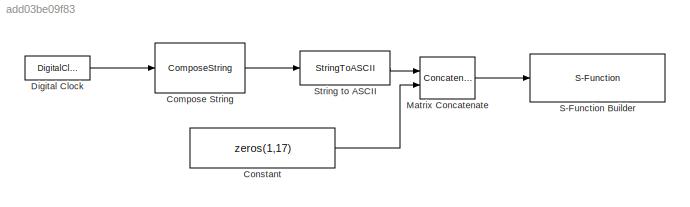
MODEL slx_add03be09f83
KIND model
CONFIG AbsTol = auto
CONFIG EnableMultiTasking = on
CONFIG FixedStep = 0.1
CONFIG MaxStep = auto
CONFIG MinStep = auto
CONFIG RelTol = 1e-3
CONFIG SampleTimeConstraint = Unconstrained
CONFIG SolverName = FixedStepAuto
CONFIG StartTime = 0.0
CONFIG StopTime = 10.0
BLOCK [ComposeString] Compose String
  Format = "%16.2f"
  Ports = [1, 1]
BLOCK [Constant] Constant
  OutDataTypeStr = uint8
  Value = zeros(1,17)
  VectorParams1D = off
BLOCK [DigitalClock] Digital Clock
  SampleTime = 0.1
BLOCK [Concatenate] Matrix Concatenate
  Mode = Multidimensional array
  Ports = [2, 1]
BLOCK [S-Function] S-Function Builder
  CopyFcn = set_param(gcbh,'LinkStatus','none')
  EnableBusSupport = off
  FunctionName = LCD_I2C
  OpenFcn = sfunctionwizard(gcbh)
  Ports = [1]
  SFcnIsStateOwnerBlock = off
  SFunctionDeploymentMode = off
  SFunctionModules = LCD_I2C_wrapper
BLOCK [StringToASCII] String to ASCII
  OutputVectorSize = 17
LINE Compose String:1 -> String to ASCII:1
LINE Constant:1 -> Matrix Concatenate:2
LINE Digital Clock:1 -> Compose String:1
LINE Matrix Concatenate:1 -> S-Function Builder:1
LINE String to ASCII:1 -> Matrix Concatenate:1
